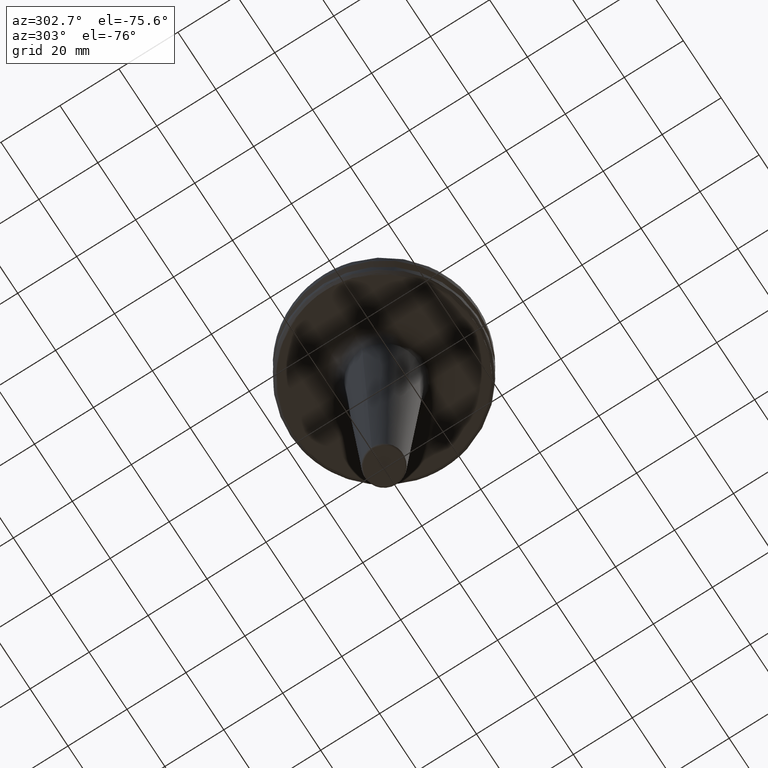
[diagram: clean part render]
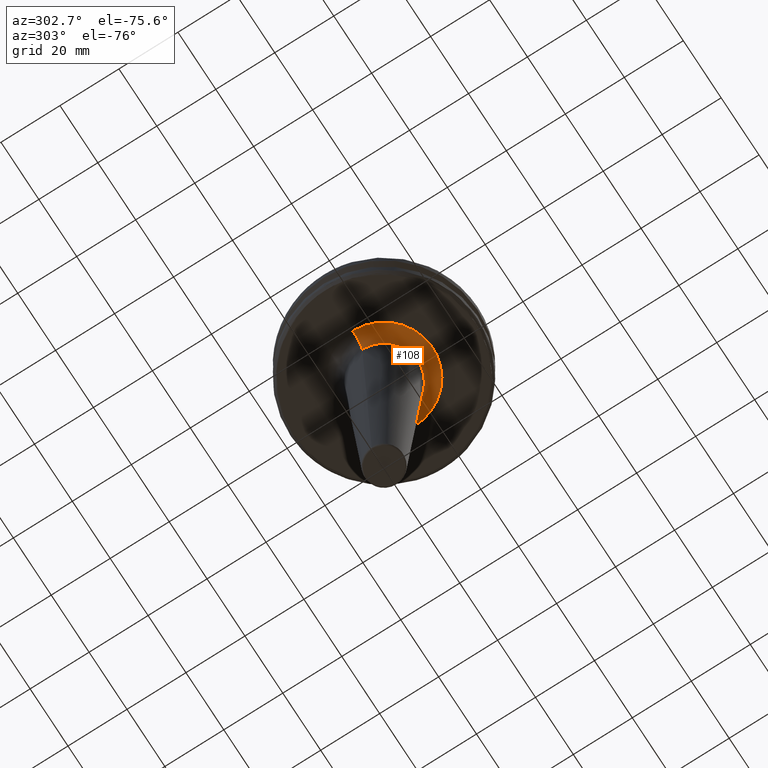
[diagram: same view with one face highlighted and labeled with its STEP entity id]
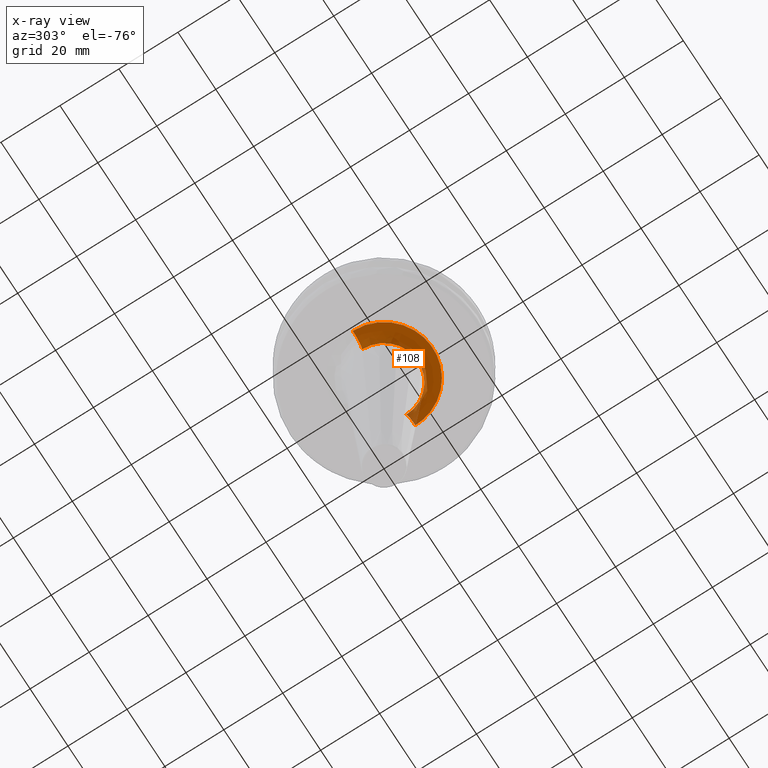
[diagram: x-ray of the same camera — body ghosted, the highlighted face saturated]
A machine part, auxiliary view. The second image highlights one B-rep face of the part: STEP entity #108.
The next image is the same camera in x-ray: the body ghosted, the highlighted face saturated — about 5% of this face is hidden behind the body in this view.
In plain terms, the highlighted face is a freeform B-spline surface patch.
Its self-contained STEP definition (entity closure, byte-faithful):
#50 = CARTESIAN_POINT ( 'NONE',  ( 16.21269048989746200, -3.238690873126965500, -19.10000000000000100 ) ) ;
#64 =( BOUNDED_SURFACE ( )  B_SPLINE_SURFACE ( 3, 3, ( 
 ( #185, #1110, #1556, #2473 ),
 ( #1316, #2971, #2022, #1118 ),
 ( #183, #2285, #2732, #2957 ),
 ( #2264, #2722, #611, #1579 ) ),
 .UNSPECIFIED., .F., .F., .T. ) 
 B_SPLINE_SURFACE_WITH_KNOTS ( ( 4, 4 ),
 ( 4, 4 ),
 ( 0.0000000000000000000, 1.000000000000000000 ),
 ( 0.0000000000000000000, 1.000000000000000000 ),
 .UNSPECIFIED. ) 
 GEOMETRIC_REPRESENTATION_ITEM ( )  RATIONAL_B_SPLINE_SURFACE ( (
 ( 1.000000000000000000, 0.3333333333333334300, 0.3333333333333334300, 1.000000000000000000),
 ( 0.8169162473415236800, 0.2723054157805079900, 0.2723054157805079900, 0.8169162473415236800),
 ( 0.8169162473415236800, 0.2723054157805079900, 0.2723054157805079900, 0.8169162473415236800),
 ( 1.000000000000000000, 0.3333333333333334300, 0.3333333333333334300, 1.000000000000000000) ) ) 
 REPRESENTATION_ITEM ( '' )  SURFACE ( )  );
#108 = ADVANCED_FACE ( 'NONE', ( #1086 ), #64, .F. ) ;
#118 = CARTESIAN_POINT ( 'NONE',  ( 2.946176467438585500, -16.26817179765287900, -19.10000000000000500 ) ) ;
#127 = CARTESIAN_POINT ( 'NONE',  ( 8.634766711520292400, -14.09994832678611200, -19.10000000000000500 ) ) ;
#140 = EDGE_CURVE ( 'NONE', #2478, #1065, #867, .T. ) ;
#141 = CARTESIAN_POINT ( 'NONE',  ( 14.14349387669190200, -8.579424698877504700, -19.10000000000000900 ) ) ;
#155 = CARTESIAN_POINT ( 'NONE',  ( -15.42083940724882200, -5.960811026865079600, -19.10000000000000500 ) ) ;
#162 = CARTESIAN_POINT ( 'NONE',  ( -10.65405962079000100, -12.66483573253134100, -19.10000000000000100 ) ) ;
#168 = CARTESIAN_POINT ( 'NONE',  ( -6.116772042543587400, -15.35964183698100300, -19.10000000000000500 ) ) ;
#183 = CARTESIAN_POINT ( 'NONE',  ( 11.68661881819672200, 1.431198032855984000E-015, -21.03341738283256700 ) ) ;
#185 = CARTESIAN_POINT ( 'NONE',  ( 16.53276776323262000, 2.024680112228937500E-015, -19.10000000000000900 ) ) ;
#233 = CARTESIAN_POINT ( 'NONE',  ( -16.26816980265087800, -2.946187250105369000, -19.10000000000000900 ) ) ;
#277 = DIRECTION ( 'NONE',  ( 0.0000000000000000000, 0.0000000000000000000, -1.000000000000000000 ) ) ;
#287 = CARTESIAN_POINT ( 'NONE',  ( 16.24446030572687500, -3.074248791746077900, -19.10000000000000900 ) ) ;
#347 = CARTESIAN_POINT ( 'NONE',  ( 3.535410629580827600, -16.15924341479846800, -19.10000000000001600 ) ) ;
#361 = CARTESIAN_POINT ( 'NONE',  ( 8.929745624259492600, -13.91391154186276900, -19.10000000000000100 ) ) ;
#372 = CARTESIAN_POINT ( 'NONE',  ( 14.99008722482821200, -6.983554063432520400, -19.10000000000000500 ) ) ;
#384 = CARTESIAN_POINT ( 'NONE',  ( -15.38482225176215900, -6.053167490767950000, -19.10000000000000500 ) ) ;
#397 = CARTESIAN_POINT ( 'NONE',  ( -9.460890470830351600, -13.55953169659550100, -19.10000000000000500 ) ) ;
#406 = CARTESIAN_POINT ( 'NONE',  ( -4.828829969918425400, -15.82787418291114400, -19.10000000000000100 ) ) ;
#456 = CARTESIAN_POINT ( 'NONE',  ( -16.53276776323262000, -0.5055237567539482300, -19.10000000000000500 ) ) ;
#518 = CARTESIAN_POINT ( 'NONE',  ( 16.44076494094545300, -2.014187349633498300, -19.10000000000000900 ) ) ;
#584 = CARTESIAN_POINT ( 'NONE',  ( 5.206696993599952500, -15.69559359181783100, -19.10000000000000500 ) ) ;
#594 = CARTESIAN_POINT ( 'NONE',  ( 10.00191735403211300, -13.21352104569939500, -19.10000000000000500 ) ) ;
#602 = CARTESIAN_POINT ( 'NONE',  ( 15.28060017657957400, -6.312245946726529900, -19.10000000000000500 ) ) ;
#609 = ORIENTED_EDGE ( 'NONE', *, *, #140, .F. ) ;
#611 = CARTESIAN_POINT ( 'NONE',  ( -11.53962008945974400, -23.07924017891949800, -23.83832021878532700 ) ) ;
#614 = CARTESIAN_POINT ( 'NONE',  ( -14.82045920772340600, -7.364574780070396900, -19.10000000000000900 ) ) ;
#622 = DIRECTION ( 'NONE',  ( 1.224646799147353200E-016, -1.000000000000000000, 0.0000000000000000000 ) ) ;
#624 = CARTESIAN_POINT ( 'NONE',  ( -9.166049023286326800, -13.75939887885152200, -19.10000000000000100 ) ) ;
#632 = CARTESIAN_POINT ( 'NONE',  ( -3.468235044735970400, -16.16589544550655700, -19.10000000000000500 ) ) ;
#636 = DIRECTION ( 'NONE',  ( 0.0000000000000000000, 1.000000000000000000, 0.0000000000000000000 ) ) ;
#753 = CARTESIAN_POINT ( 'NONE',  ( 16.53276776323262000, 2.024680112228937900E-015, -19.10000000000000500 ) ) ;
#788 = CARTESIAN_POINT ( 'NONE',  ( -16.53276776323262000, 0.0000000000000000000, -19.10000000000000500 ) ) ;
#803 = CARTESIAN_POINT ( 'NONE',  ( -1.010872252384309200, -16.53273533653331700, -19.10000000000000500 ) ) ;
#814 = CARTESIAN_POINT ( 'NONE',  ( 5.867055644133836600, -15.45697625940530000, -19.10000000000000900 ) ) ;
#826 = CARTESIAN_POINT ( 'NONE',  ( 12.09384705961449700, -11.28704361256715000, -19.10000000000000500 ) ) ;
#839 = CARTESIAN_POINT ( 'NONE',  ( 15.34615993165869500, -6.150526174095629600, -19.10000000000000100 ) ) ;
#850 = CARTESIAN_POINT ( 'NONE',  ( -14.09994832679044000, -8.634766711511176100, -19.10000000000000500 ) ) ;
#859 = CARTESIAN_POINT ( 'NONE',  ( -8.579424698881169300, -14.14349387669129100, -19.10000000000000500 ) ) ;
#867 = CIRCLE ( 'NONE', #1387, 5.000000000000000900 ) ;
#868 = CARTESIAN_POINT ( 'NONE',  ( -3.140059644919705100, -16.23186921816281400, -19.10000000000000100 ) ) ;
#871 = EDGE_CURVE ( 'NONE', #1594, #1936, #2244, .T. ) ;
#881 = EDGE_LOOP ( 'NONE', ( #609, #1903, #2748, #2048 ) ) ;
#1036 = CARTESIAN_POINT ( 'NONE',  ( 1.260557331713640900, -16.49829507823681100, -19.10000000000000500 ) ) ;
#1050 = CARTESIAN_POINT ( 'NONE',  ( 6.023259227988106100, -15.39655306182878500, -19.10000000000000500 ) ) ;
#1059 = CARTESIAN_POINT ( 'NONE',  ( 13.27125534796412500, -9.866751345989206000, -19.10000000000000500 ) ) ;
#1065 = VERTEX_POINT ( 'NONE', #2315 ) ;
#1070 = CARTESIAN_POINT ( 'NONE',  ( 15.56928946571268200, -5.587261236340093100, -19.10000000000000500 ) ) ;
#1072 = CARTESIAN_POINT ( 'NONE',  ( -16.15924341479917800, -3.535410629576757100, -19.09999999999999800 ) ) ;
#1085 = CARTESIAN_POINT ( 'NONE',  ( -13.91391154186414700, -8.929745624256614900, -19.10000000000000500 ) ) ;
#1086 = FACE_OUTER_BOUND ( 'NONE', #881, .T. ) ;
#1093 = CARTESIAN_POINT ( 'NONE',  ( -6.983554063437324500, -14.99008722482742500, -19.10000000000001200 ) ) ;
#1101 = CARTESIAN_POINT ( 'NONE',  ( -3.039415081285464600, -16.25101013402035800, -19.10000000000000100 ) ) ;
#1110 = CARTESIAN_POINT ( 'NONE',  ( 16.53276776323262000, -33.06553552646523300, -19.10000000000000900 ) ) ;
#1116 = EDGE_CURVE ( 'NONE', #1594, #2478, #1775, .T. ) ;
#1118 = CARTESIAN_POINT ( 'NONE',  ( -13.72401563009838200, -3.361414362569646900E-015, -19.10000000000001600 ) ) ;
#1157 = CARTESIAN_POINT ( 'NONE',  ( -16.53276776323262000, 0.0000000000000000000, -19.10000000000000500 ) ) ;
#1216 = CARTESIAN_POINT ( 'NONE',  ( 15.82787418291227200, -4.828829969919158100, -19.10000000000000500 ) ) ;
#1284 = CARTESIAN_POINT ( 'NONE',  ( 2.572730928590551100, -16.33224277487438100, -19.10000000000000100 ) ) ;
#1291 = CARTESIAN_POINT ( 'NONE',  ( 6.604934064761747200, -15.16640282920802500, -19.10000000000000900 ) ) ;
#1299 = CARTESIAN_POINT ( 'NONE',  ( 13.67987867621011400, -9.284334366238832500, -19.10000000000000500 ) ) ;
#1310 = CARTESIAN_POINT ( 'NONE',  ( -15.69559359181877200, -5.206696993594606600, -19.10000000000000500 ) ) ;
#1316 = CARTESIAN_POINT ( 'NONE',  ( 13.72401563009838200, 1.680707181284823400E-015, -19.10000000000001600 ) ) ;
#1322 = CARTESIAN_POINT ( 'NONE',  ( -13.21352104570850000, -10.00191735402485400, -19.10000000000001200 ) ) ;
#1331 = CARTESIAN_POINT ( 'NONE',  ( -6.312245946728033600, -15.28060017657932900, -19.10000000000000500 ) ) ;
#1346 = AXIS2_PLACEMENT_3D ( 'NONE', #2039, #636, #2262 ) ;
#1387 = AXIS2_PLACEMENT_3D ( 'NONE', #2727, #622, #2014 ) ;
#1392 = CARTESIAN_POINT ( 'NONE',  ( -16.33223036152855200, -2.572798020739421000, -19.10000000000000500 ) ) ;
#1442 = CARTESIAN_POINT ( 'NONE',  ( 16.16589544550705100, -3.468235044736296800, -19.10000000000000500 ) ) ;
#1501 = CARTESIAN_POINT ( 'NONE',  ( 2.883976352672581000, -16.27931466441612700, -19.10000000000000100 ) ) ;
#1513 = CARTESIAN_POINT ( 'NONE',  ( 8.217005526796082600, -14.35108143407733100, -19.10000000000000100 ) ) ;
#1527 = CARTESIAN_POINT ( 'NONE',  ( 13.79964722199039800, -9.105325154444203800, -19.10000000000000500 ) ) ;
#1538 = CARTESIAN_POINT ( 'NONE',  ( -15.45697625940559100, -5.867055644132165100, -19.10000000000000500 ) ) ;
#1549 = CARTESIAN_POINT ( 'NONE',  ( -11.28704361256975700, -12.09384705961096900, -19.10000000000000500 ) ) ;
#1556 = CARTESIAN_POINT ( 'NONE',  ( -16.53276776323260900, -33.06553552646524000, -19.10000000000000900 ) ) ;
#1563 = CARTESIAN_POINT ( 'NONE',  ( -6.150526174096079900, -15.34615993165861900, -19.10000000000000100 ) ) ;
#1579 = CARTESIAN_POINT ( 'NONE',  ( -11.53962008945974900, -2.826391761186675000E-015, -23.83832021878532400 ) ) ;
#1594 = VERTEX_POINT ( 'NONE', #788 ) ;
#1622 = CARTESIAN_POINT ( 'NONE',  ( 16.53276776323262000, 2.024680112228937900E-015, -19.10000000000000500 ) ) ;
#1626 = CARTESIAN_POINT ( 'NONE',  ( -16.27931076941221600, -2.883997404545823000, -19.10000000000000500 ) ) ;
#1665 = CARTESIAN_POINT ( 'NONE',  ( 0.0000000000000000000, 0.0000000000000000000, -23.83832021878532400 ) ) ;
#1677 = CARTESIAN_POINT ( 'NONE',  ( 16.23186921816297000, -3.140059644919806800, -19.10000000000000500 ) ) ;
#1744 = CARTESIAN_POINT ( 'NONE',  ( 2.975411778108792300, -16.26285403896940800, -19.10000000000000900 ) ) ;
#1756 = CARTESIAN_POINT ( 'NONE',  ( 8.811995607410331400, -13.98879609070276700, -19.10000000000000100 ) ) ;
#1766 = CARTESIAN_POINT ( 'NONE',  ( 14.56449018539992900, -7.858665967362459700, -19.10000000000000500 ) ) ;
#1775 = B_SPLINE_CURVE_WITH_KNOTS ( 'NONE', 3,
 ( #1157, #456, #1850, #2783, #1392, #3004, #1626, #233, #2461, #1072, #2699, #1310, #2927, #1538, #155, #1779, #384, #2016, #614, #2242, #850, #2469, #1085, #2706, #1322, #2939, #1549, #162, #1788, #397, #2025, #624, #2252, #859, #2477, #1093, #2715, #1331, #2948, #1563, #168, #1797, #406, #2035, #632, #2260, #868, #2486, #1101, #2723, #803, #2432, #1036, #2665, #1284, #2896, #1501, #118, #1744, #347, #1981, #584, #2209, #814, #2441, #1050, #2675, #1291, #2909, #1513, #127, #1756, #361, #1990, #594, #2220, #826, #2449, #1059, #2688, #1299, #2916, #1527, #141, #1766, #372, #2005, #602, #2230, #839, #2457, #1070, #1216, #2834, #1442, #50, #1677, #287, #1915, #518, #2142, #753 ),
 .UNSPECIFIED., .F., .F.,
 ( 4, 1, 1, 1, 1, 2, 2, 1, 1, 1, 1, 2, 2, 1, 1, 1, 2, 2, 2, 1, 1, 1, 2, 2, 1, 1, 1, 1, 2, 2, 1, 1, 1, 1, 2, 2, 2, 1, 1, 1, 1, 2, 2, 1, 1, 1, 1, 2, 2, 1, 1, 1, 2, 2, 2, 1, 1, 1, 2, 2, 1, 1, 1, 1, 2, 2, 1, 1, 1, 1, 2, 2, 4 ),
 ( 0.0000000000000000000, 0.03125000000000147100, 0.04687500000000222000, 0.05468750000000260200, 0.05859375000000278900, 0.06054687500000286600, 0.06250000000000294200, 0.09375000000000360800, 0.1093750000000039400, 0.1171875000000041200, 0.1210937500000042200, 0.1230468750000042600, 0.1250000000000043000, 0.1562500000000047500, 0.1718750000000049400, 0.1796875000000050800, 0.1835937500000050800, 0.1875000000000051100, 0.2500000000000057200, 0.2812500000000060000, 0.2968750000000062200, 0.3046875000000062700, 0.3085937500000063800, 0.3125000000000064400, 0.3437500000000069400, 0.3593750000000072700, 0.3671875000000073800, 0.3710937500000074400, 0.3730468750000073800, 0.3750000000000073800, 0.4062500000000067700, 0.4218750000000064900, 0.4296875000000062700, 0.4335937500000062200, 0.4355468750000061600, 0.4375000000000061600, 0.5000000000000051100, 0.5312500000000046600, 0.5468750000000044400, 0.5546875000000043300, 0.5585937500000043300, 0.5605468750000043300, 0.5625000000000042200, 0.5937500000000037700, 0.6093750000000034400, 0.6171875000000034400, 0.6210937500000033300, 0.6230468750000033300, 0.6250000000000033300, 0.6562500000000024400, 0.6718750000000021100, 0.6796875000000018900, 0.6835937500000018900, 0.6875000000000017800, 0.7500000000000013300, 0.7812500000000011100, 0.7968750000000010000, 0.8046875000000008900, 0.8085937500000008900, 0.8125000000000007800, 0.8437500000000006700, 0.8593750000000005600, 0.8671875000000005600, 0.8710937500000004400, 0.8730468750000004400, 0.8750000000000004400, 0.9062500000000004400, 0.9218750000000004400, 0.9296875000000004400, 0.9335937500000004400, 0.9355468750000004400, 0.9375000000000003300, 1.000000000000000000 ),
 .UNSPECIFIED. ) ;
#1779 = CARTESIAN_POINT ( 'NONE',  ( -15.39655306182887200, -6.023259227987605200, -19.10000000000000900 ) ) ;
#1788 = CARTESIAN_POINT ( 'NONE',  ( -9.866751345992625500, -13.27125534795949600, -19.10000000000000900 ) ) ;
#1797 = CARTESIAN_POINT ( 'NONE',  ( -5.587261236339681000, -15.56928946571203600, -19.10000000000001200 ) ) ;
#1829 = EDGE_CURVE ( 'NONE', #1065, #1936, #2218, .T. ) ;
#1850 = CARTESIAN_POINT ( 'NONE',  ( -16.49826670487493300, -1.260710685196774200, -19.10000000000000500 ) ) ;
#1903 = ORIENTED_EDGE ( 'NONE', *, *, #1116, .F. ) ;
#1904 = DIRECTION ( 'NONE',  ( -1.000000000000000000, 0.0000000000000000000, 0.0000000000000000000 ) ) ;
#1915 = CARTESIAN_POINT ( 'NONE',  ( 16.25100911997816400, -3.039420560062208800, -19.10000000000000500 ) ) ;
#1936 = VERTEX_POINT ( 'NONE', #1940 ) ;
#1940 = CARTESIAN_POINT ( 'NONE',  ( -11.53962008945974900, 1.413195880593337500E-015, -23.83832021878532400 ) ) ;
#1981 = CARTESIAN_POINT ( 'NONE',  ( 4.315362869132525400, -15.97550834787706000, -19.10000000000000500 ) ) ;
#1990 = CARTESIAN_POINT ( 'NONE',  ( 8.987202671521114200, -13.87687311585529100, -19.10000000000000100 ) ) ;
#2005 = CARTESIAN_POINT ( 'NONE',  ( 15.18649441435958600, -6.537441432176962100, -19.10000000000000500 ) ) ;
#2014 = DIRECTION ( 'NONE',  ( 1.000000000000000000, 1.224646799147352700E-016, 0.0000000000000000000 ) ) ;
#2016 = CARTESIAN_POINT ( 'NONE',  ( -15.16640282921367500, -6.604934064749842900, -19.10000000000000500 ) ) ;
#2022 = CARTESIAN_POINT ( 'NONE',  ( -13.72401563009837500, -27.44803126019676000, -19.10000000000001200 ) ) ;
#2025 = CARTESIAN_POINT ( 'NONE',  ( -9.284334366240040400, -13.67987867620848900, -19.10000000000000100 ) ) ;
#2035 = CARTESIAN_POINT ( 'NONE',  ( -3.924941944458246300, -16.06412664297505100, -19.10000000000000500 ) ) ;
#2039 = CARTESIAN_POINT ( 'NONE',  ( -16.53276776323262000, 0.0000000000000000000, -24.10000000000000900 ) ) ;
#2048 = ORIENTED_EDGE ( 'NONE', *, *, #1829, .F. ) ;
#2142 = CARTESIAN_POINT ( 'NONE',  ( 16.53276776323262000, -1.011403053960498600, -19.10000000000000100 ) ) ;
#2209 = CARTESIAN_POINT ( 'NONE',  ( 5.647711517081271300, -15.53924691929215200, -19.10000000000000900 ) ) ;
#2218 = CIRCLE ( 'NONE', #2924, 11.53962008945974900 ) ;
#2220 = CARTESIAN_POINT ( 'NONE',  ( 10.88360247226340300, -12.49720936635809400, -19.09999999999999400 ) ) ;
#2230 = CARTESIAN_POINT ( 'NONE',  ( 15.32005311055692700, -6.215275202285778500, -19.10000000000000900 ) ) ;
#2242 = CARTESIAN_POINT ( 'NONE',  ( -14.35108143408476000, -8.217005526780457800, -19.10000000000000500 ) ) ;
#2244 = CIRCLE ( 'NONE', #1346, 5.000000000000000900 ) ;
#2252 = CARTESIAN_POINT ( 'NONE',  ( -9.105325154443757900, -13.79964722199047600, -19.10000000000000500 ) ) ;
#2260 = CARTESIAN_POINT ( 'NONE',  ( -3.238690873126791800, -16.21269048989720900, -19.10000000000000100 ) ) ;
#2262 = DIRECTION ( 'NONE',  ( -1.000000000000000000, 0.0000000000000000000, 0.0000000000000000000 ) ) ;
#2264 = CARTESIAN_POINT ( 'NONE',  ( 11.53962008945974900, 1.413195880593337500E-015, -23.83832021878532400 ) ) ;
#2285 = CARTESIAN_POINT ( 'NONE',  ( 11.68661881819672400, -23.37323763639343000, -21.03341738283256400 ) ) ;
#2315 = CARTESIAN_POINT ( 'NONE',  ( 11.53962008945974900, 0.0000000000000000000, -23.83832021878532400 ) ) ;
#2432 = CARTESIAN_POINT ( 'NONE',  ( 0.5054361261921575000, -16.53278397658227000, -19.10000000000000900 ) ) ;
#2441 = CARTESIAN_POINT ( 'NONE',  ( 5.960811026866056600, -15.42083940724864600, -19.10000000000000100 ) ) ;
#2449 = CARTESIAN_POINT ( 'NONE',  ( 12.66483573253751500, -10.65405962078544500, -19.10000000000000500 ) ) ;
#2457 = CARTESIAN_POINT ( 'NONE',  ( 15.35964183698096800, -6.116772042543557200, -19.10000000000000500 ) ) ;
#2461 = CARTESIAN_POINT ( 'NONE',  ( -16.26285403896936200, -2.975411778109048100, -19.10000000000000500 ) ) ;
#2469 = CARTESIAN_POINT ( 'NONE',  ( -13.98879609070538000, -8.811995607404846000, -19.10000000000000500 ) ) ;
#2473 = CARTESIAN_POINT ( 'NONE',  ( -16.53276776323262000, -4.049360224457875000E-015, -19.10000000000000900 ) ) ;
#2477 = CARTESIAN_POINT ( 'NONE',  ( -7.858665967368857300, -14.56449018539887100, -19.10000000000000500 ) ) ;
#2478 = VERTEX_POINT ( 'NONE', #1622 ) ;
#2486 = CARTESIAN_POINT ( 'NONE',  ( -3.074248791746025900, -16.24446030572679000, -19.10000000000000900 ) ) ;
#2665 = CARTESIAN_POINT ( 'NONE',  ( 2.136224349896885600, -16.39765989801976100, -19.10000000000000100 ) ) ;
#2675 = CARTESIAN_POINT ( 'NONE',  ( 6.053167490767205700, -15.38482225176250400, -19.10000000000000100 ) ) ;
#2688 = CARTESIAN_POINT ( 'NONE',  ( 13.55953169659819900, -9.460890470828349700, -19.10000000000000500 ) ) ;
#2699 = CARTESIAN_POINT ( 'NONE',  ( -15.97550834787829800, -4.315362869125403100, -19.10000000000000900 ) ) ;
#2706 = CARTESIAN_POINT ( 'NONE',  ( -13.87687311585472800, -8.987202671521577800, -19.10000000000000900 ) ) ;
#2715 = CARTESIAN_POINT ( 'NONE',  ( -6.537441432179760700, -15.18649441435911700, -19.10000000000000500 ) ) ;
#2722 = CARTESIAN_POINT ( 'NONE',  ( 11.53962008945975300, -23.07924017891949500, -23.83832021878532700 ) ) ;
#2723 = CARTESIAN_POINT ( 'NONE',  ( -2.014362670489286500, -16.44073249159519900, -19.10000000000001200 ) ) ;
#2727 = CARTESIAN_POINT ( 'NONE',  ( 16.53276776323262000, 2.024680112228937500E-015, -24.10000000000000900 ) ) ;
#2732 = CARTESIAN_POINT ( 'NONE',  ( -11.68661881819671300, -23.37323763639343400, -21.03341738283256400 ) ) ;
#2748 = ORIENTED_EDGE ( 'NONE', *, *, #871, .T. ) ;
#2783 = CARTESIAN_POINT ( 'NONE',  ( -16.39763861799835000, -2.136339365009234400, -19.10000000000000900 ) ) ;
#2834 = CARTESIAN_POINT ( 'NONE',  ( 16.06412664297588600, -3.924941944458793900, -19.10000000000000500 ) ) ;
#2896 = CARTESIAN_POINT ( 'NONE',  ( 2.790652485337894900, -16.29575933004249000, -19.10000000000000500 ) ) ;
#2909 = CARTESIAN_POINT ( 'NONE',  ( 7.364574780091229100, -14.82045920771351000, -19.10000000000000500 ) ) ;
#2916 = CARTESIAN_POINT ( 'NONE',  ( 13.75939887885237300, -9.166049023285689000, -19.10000000000000100 ) ) ;
#2924 = AXIS2_PLACEMENT_3D ( 'NONE', #1665, #277, #1904 ) ;
#2927 = CARTESIAN_POINT ( 'NONE',  ( -15.53924691929270300, -5.647711517078153800, -19.10000000000000500 ) ) ;
#2939 = CARTESIAN_POINT ( 'NONE',  ( -12.49720936635288700, -10.88360247227046400, -19.10000000000000500 ) ) ;
#2948 = CARTESIAN_POINT ( 'NONE',  ( -6.215275202286658600, -15.32005311055677800, -19.10000000000000100 ) ) ;
#2957 = CARTESIAN_POINT ( 'NONE',  ( -11.68661881819672200, -2.862396065711967900E-015, -21.03341738283256700 ) ) ;
#2971 = CARTESIAN_POINT ( 'NONE',  ( 13.72401563009838400, -27.44803126019675700, -19.10000000000001200 ) ) ;
#3004 = CARTESIAN_POINT ( 'NONE',  ( -16.29575268003579300, -2.790688427560503700, -19.10000000000000100 ) ) ;